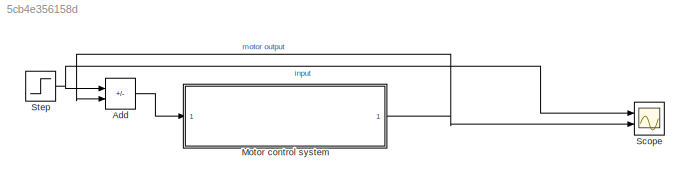
MODEL slx_5cb4e356158d
KIND model
CONFIG AbsTol = auto
CONFIG EnableMultiTasking = off
CONFIG FixedStep = auto
CONFIG MaxStep = auto
CONFIG MinStep = auto
CONFIG RelTol = 1e-3
CONFIG SampleTimeConstraint = Unconstrained
CONFIG Solver = VariableStepAuto
CONFIG SolverName = VariableStepAuto
CONFIG StartTime = 0.0
CONFIG StopTime = 10.0
WORKSPACE source: external: MAT-File  (data not in archive)
BLOCK [Sum] Add
  IconShape = rectangular
  Inputs = +-
  Ports = [2, 1]
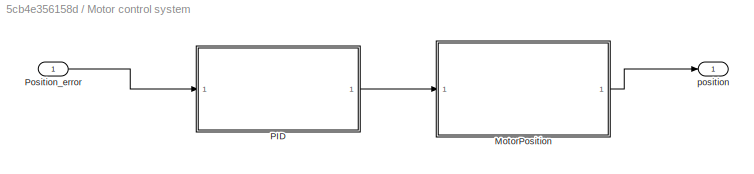
BLOCK [SubSystem] Motor control system
  Ports = [1, 1]
  RequestExecContextInheritance = off
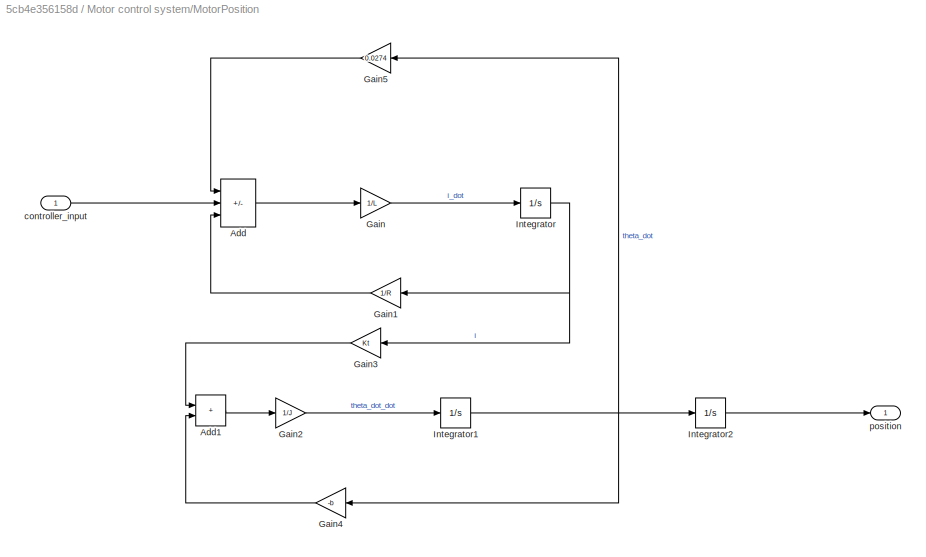
BLOCK [SubSystem] Motor control system/MotorPosition
  Ports = [1, 1]
  RequestExecContextInheritance = off
BLOCK [Sum] Motor control system/MotorPosition/Add
  IconShape = rectangular
  Inputs = -+-
  Ports = [3, 1]
BLOCK [Sum] Motor control system/MotorPosition/Add1
  IconShape = rectangular
  Ports = [2, 1]
BLOCK [Gain] Motor control system/MotorPosition/Gain
  Gain = 1/L
BLOCK [Gain] Motor control system/MotorPosition/Gain1
  Gain = 1/R
  NameLocation = top
BLOCK [Gain] Motor control system/MotorPosition/Gain2
  Gain = 1/J
BLOCK [Gain] Motor control system/MotorPosition/Gain3
  Gain = Kt
  NameLocation = top
BLOCK [Gain] Motor control system/MotorPosition/Gain4
  Gain = -b
  NameLocation = top
BLOCK [Gain] Motor control system/MotorPosition/Gain5
  Gain = 0.0274
  NameLocation = top
BLOCK [Integrator] Motor control system/MotorPosition/Integrator
  Ports = [1, 1]
BLOCK [Integrator] Motor control system/MotorPosition/Integrator1
  Ports = [1, 1]
BLOCK [Integrator] Motor control system/MotorPosition/Integrator2
  Ports = [1, 1]
BLOCK [Inport] Motor control system/MotorPosition/controller_input
BLOCK [Outport] Motor control system/MotorPosition/position
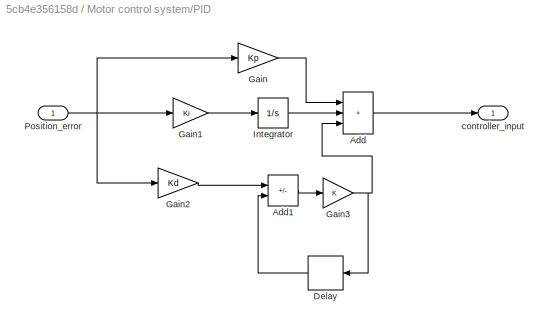
BLOCK [SubSystem] Motor control system/PID
  Ports = [1, 1]
  RequestExecContextInheritance = off
BLOCK [Sum] Motor control system/PID/Add
  IconShape = rectangular
  Inputs = +++
  Ports = [3, 1]
BLOCK [Sum] Motor control system/PID/Add1
  IconShape = rectangular
  Inputs = +-
  Ports = [2, 1]
BLOCK [Delay] Motor control system/PID/Delay
  DelayLength = 1
  InputPortMap = u0
  NameLocation = top
  Ports = [1, 1]
BLOCK [Gain] Motor control system/PID/Gain
  Gain = Kp
BLOCK [Gain] Motor control system/PID/Gain1
  Gain = Ki
BLOCK [Gain] Motor control system/PID/Gain2
  Gain = Kd
BLOCK [Gain] Motor control system/PID/Gain3
  NameLocation = top
BLOCK [Integrator] Motor control system/PID/Integrator
  Ports = [1, 1]
BLOCK [Inport] Motor control system/PID/Position_error
BLOCK [Outport] Motor control system/PID/controller_input
BLOCK [Inport] Motor control system/Position_error
  OutDataTypeStr = double
  PortDimensions = 1
  SampleTime = 0
  SamplingMode = Sample based
  SignalType = real
BLOCK [Outport] Motor control system/position
  OutDataTypeStr = double
  PortDimensions = 1
  SampleTime = 0
  SamplingMode = Sample based
  SignalType = real
BLOCK [Scope] Scope
  Floating = off
  NumInputPorts = 2
  Ports = [2]
  ScopeSpecificationString = Simulink.scopes.TimeScopeBlockCfg('CurrentConfiguration', extmgr.ConfigurationSet(extmgr.Configuration('Core','General UI',true),extmgr.Configuration('Core','Source UI',true),extmgr.Configuration('Sources','WiredSimulink',true),extmgr.Configuration('Visuals','Time Domain',true,'SerializedDisplays',{struct('MinYLimReal','-1.25','MaxYLimReal','11.25','YLabelReal','','MinYLimMag','0.00000','MaxYLimMa...<+1968ch>
BLOCK [Step] Step
  After = 10
  SampleTime = 0
LINE Add:1 -> Motor control system:1
LINE Motor control system/MotorPosition/Add1:1 -> Motor control system/MotorPosition/Gain2:1
LINE Motor control system/MotorPosition/Add:1 -> Motor control system/MotorPosition/Gain:1
LINE Motor control system/MotorPosition/Gain1:1 -> Motor control system/MotorPosition/Add:3
LINE Motor control system/MotorPosition/Gain2:1 -> Motor control system/MotorPosition/Integrator1:1
LINE Motor control system/MotorPosition/Gain3:1 -> Motor control system/MotorPosition/Add1:1
LINE Motor control system/MotorPosition/Gain4:1 -> Motor control system/MotorPosition/Add1:2
LINE Motor control system/MotorPosition/Gain5:1 -> Motor control system/MotorPosition/Add:1
LINE Motor control system/MotorPosition/Gain:1 -> Motor control system/MotorPosition/Integrator:1
NET Motor control system/MotorPosition/Integrator1:1 -> Motor control system/MotorPosition/Gain4:1, Motor control system/MotorPosition/Gain5:1, Motor control system/MotorPosition/Integrator2:1
LINE Motor control system/MotorPosition/Integrator2:1 -> Motor control system/MotorPosition/position:1
NET Motor control system/MotorPosition/Integrator:1 -> Motor control system/MotorPosition/Gain1:1, Motor control system/MotorPosition/Gain3:1
LINE Motor control system/MotorPosition/controller_input:1 -> Motor control system/MotorPosition/Add:2
LINE Motor control system/MotorPosition:1 -> Motor control system/position:1
LINE Motor control system/PID/Add1:1 -> Motor control system/PID/Gain3:1
LINE Motor control system/PID/Add:1 -> Motor control system/PID/controller_input:1
LINE Motor control system/PID/Delay:1 -> Motor control system/PID/Add1:2
LINE Motor control system/PID/Gain1:1 -> Motor control system/PID/Integrator:1
LINE Motor control system/PID/Gain2:1 -> Motor control system/PID/Add1:1
NET Motor control system/PID/Gain3:1 -> Motor control system/PID/Add:3, Motor control system/PID/Delay:1
LINE Motor control system/PID/Gain:1 -> Motor control system/PID/Add:1
LINE Motor control system/PID/Integrator:1 -> Motor control system/PID/Add:2
NET Motor control system/PID/Position_error:1 -> Motor control system/PID/Gain1:1, Motor control system/PID/Gain2:1, Motor control system/PID/Gain:1
LINE Motor control system/PID:1 -> Motor control system/MotorPosition:1
LINE Motor control system/Position_error:1 -> Motor control system/PID:1
NET Motor control system:1 -> Add:2, Scope:2
NET Step:1 -> Add:1, Scope:1
note: NET lines group one-source signal fan-out (src -> all destinations, sorted); 1:1 wires keep LINE
